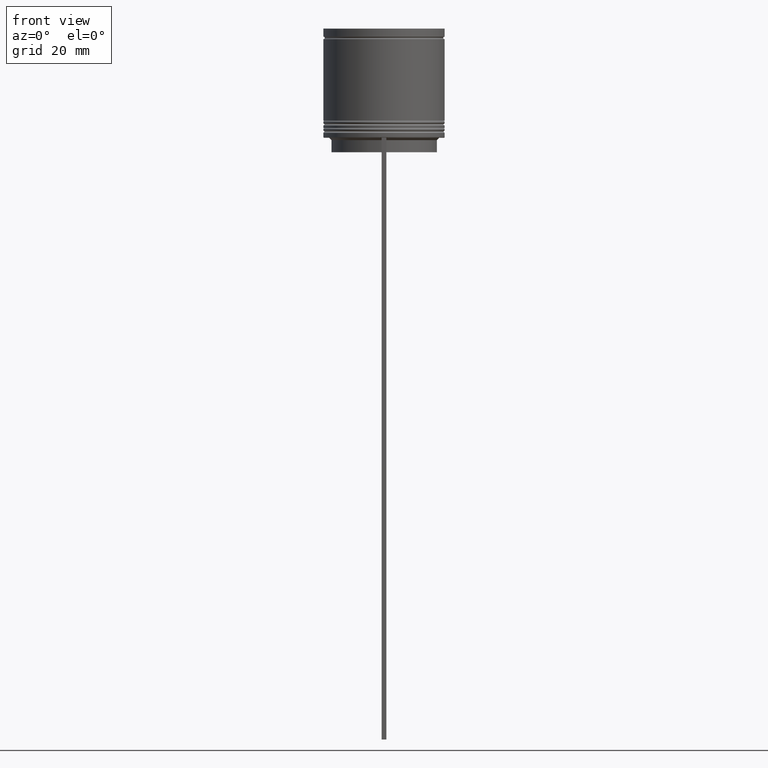
[diagram: clean part render]
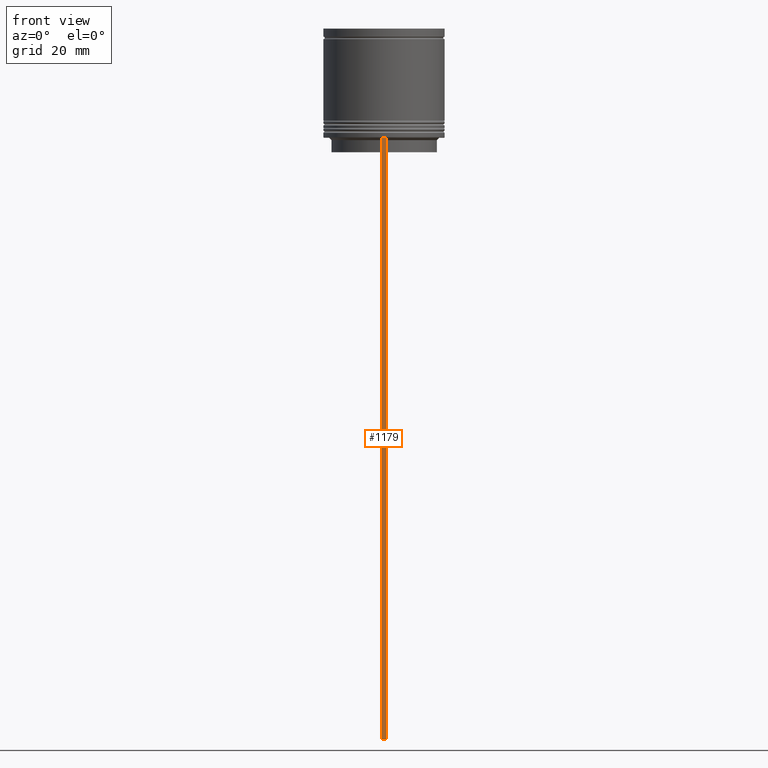
[diagram: same view with one face highlighted and labeled with its STEP entity id]
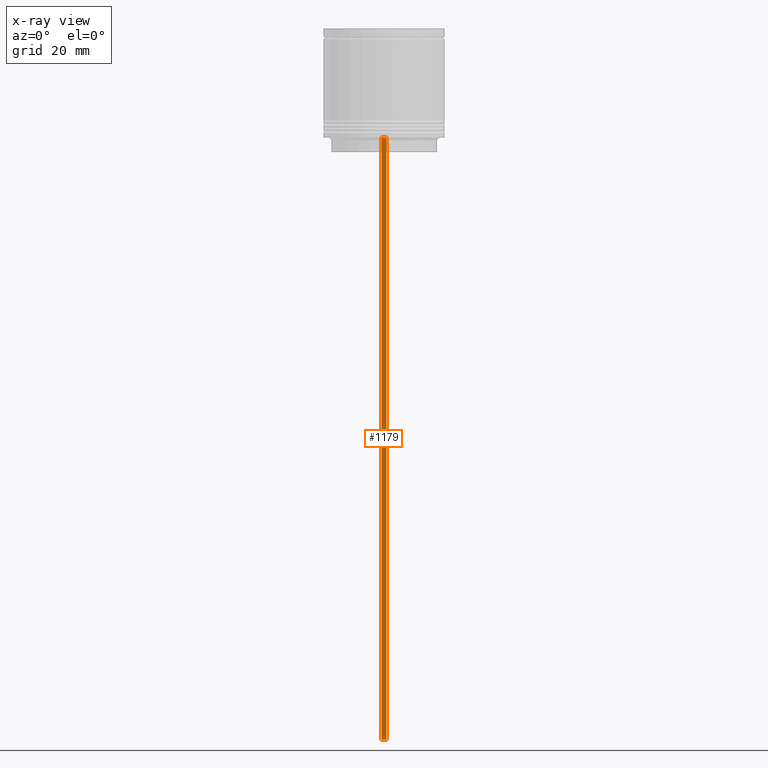
[diagram: x-ray of the same camera — body ghosted, the highlighted face saturated]
A machine part, front view. The second image highlights one B-rep face of the part: STEP entity #1179.
The next image is the same camera in x-ray: the body ghosted, the highlighted face saturated — about 0% of this face is hidden behind the body in this view.
In plain terms, the highlighted planar face has unit normal (0, -1, -0).
Its self-contained STEP definition (entity closure, byte-faithful):
#11 = ORIENTED_EDGE ( 'NONE', *, *, #172, .F. ) ;
#19 = CARTESIAN_POINT ( 'NONE',  ( 0.5000000000000000000, -12.49999999999999289, -146.5000000000000000 ) ) ;
#59 = VECTOR ( 'NONE', #329, 1000.000000000000000 ) ;
#70 = EDGE_CURVE ( 'NONE', #289, #591, #1534, .T. ) ;
#72 = DIRECTION ( 'NONE',  ( 0.000000000000000000, 0.000000000000000000, -1.000000000000000000 ) ) ;
#168 = CARTESIAN_POINT ( 'NONE',  ( -0.5000000000000000000, -12.49999999999999289, -22.50000000000000000 ) ) ;
#172 = EDGE_CURVE ( 'NONE', #591, #369, #1927, .T. ) ;
#217 = VECTOR ( 'NONE', #72, 1000.000000000000000 ) ;
#242 = CARTESIAN_POINT ( 'NONE',  ( 0.5000000000000000000, -12.49999999999999289, -22.50000000000000000 ) ) ;
#289 = VERTEX_POINT ( 'NONE', #168 ) ;
#329 = DIRECTION ( 'NONE',  ( -1.000000000000000000, 0.000000000000000000, 0.000000000000000000 ) ) ;
#357 = CARTESIAN_POINT ( 'NONE',  ( 0.5000000000000000000, -12.49999999999999289, 2.519992006393609874 ) ) ;
#369 = VERTEX_POINT ( 'NONE', #1196 ) ;
#478 = LINE ( 'NONE', #19, #59 ) ;
#544 = DIRECTION ( 'NONE',  ( 1.000000000000000000, 0.000000000000000000, 0.000000000000000000 ) ) ;
#591 = VERTEX_POINT ( 'NONE', #618 ) ;
#618 = CARTESIAN_POINT ( 'NONE',  ( 0.5000000000000000000, -12.49999999999999289, -22.50000000000000000 ) ) ;
#726 = ORIENTED_EDGE ( 'NONE', *, *, #826, .T. ) ;
#764 = DIRECTION ( 'NONE',  ( 0.000000000000000000, 0.000000000000000000, -1.000000000000000000 ) ) ;
#826 = EDGE_CURVE ( 'NONE', #289, #1956, #1809, .T. ) ;
#956 = FACE_OUTER_BOUND ( 'NONE', #1112, .T. ) ;
#1109 = AXIS2_PLACEMENT_3D ( 'NONE', #1576, #1601, #764 ) ;
#1112 = EDGE_LOOP ( 'NONE', ( #1490, #726, #1126, #11 ) ) ;
#1126 = ORIENTED_EDGE ( 'NONE', *, *, #1721, .F. ) ;
#1179 = ADVANCED_FACE ( 'NONE', ( #956 ), #1757, .T. ) ;
#1196 = CARTESIAN_POINT ( 'NONE',  ( 0.5000000000000000000, -12.49999999999999289, -146.5000000000000000 ) ) ;
#1482 = CARTESIAN_POINT ( 'NONE',  ( -0.5000000000000000000, -12.49999999999999289, 2.519992006393609874 ) ) ;
#1490 = ORIENTED_EDGE ( 'NONE', *, *, #70, .F. ) ;
#1534 = LINE ( 'NONE', #242, #1866 ) ;
#1576 = CARTESIAN_POINT ( 'NONE',  ( 0.5000000000000000000, -12.49999999999999289, 2.519992006393609874 ) ) ;
#1601 = DIRECTION ( 'NONE',  ( 0.000000000000000000, -1.000000000000000000, -0.000000000000000000 ) ) ;
#1641 = VECTOR ( 'NONE', #1770, 1000.000000000000000 ) ;
#1721 = EDGE_CURVE ( 'NONE', #369, #1956, #478, .T. ) ;
#1757 = PLANE ( 'NONE',  #1109 ) ;
#1770 = DIRECTION ( 'NONE',  ( 0.000000000000000000, 0.000000000000000000, -1.000000000000000000 ) ) ;
#1809 = LINE ( 'NONE', #1482, #217 ) ;
#1866 = VECTOR ( 'NONE', #544, 1000.000000000000000 ) ;
#1927 = LINE ( 'NONE', #357, #1641 ) ;
#1945 = CARTESIAN_POINT ( 'NONE',  ( -0.5000000000000000000, -12.49999999999999289, -146.5000000000000000 ) ) ;
#1956 = VERTEX_POINT ( 'NONE', #1945 ) ;